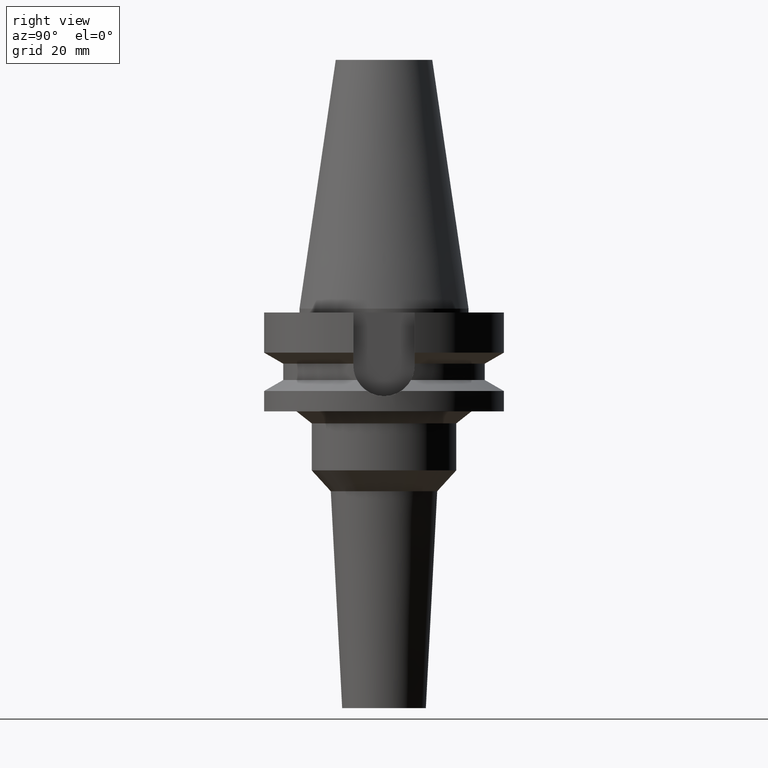
[diagram: clean part render]
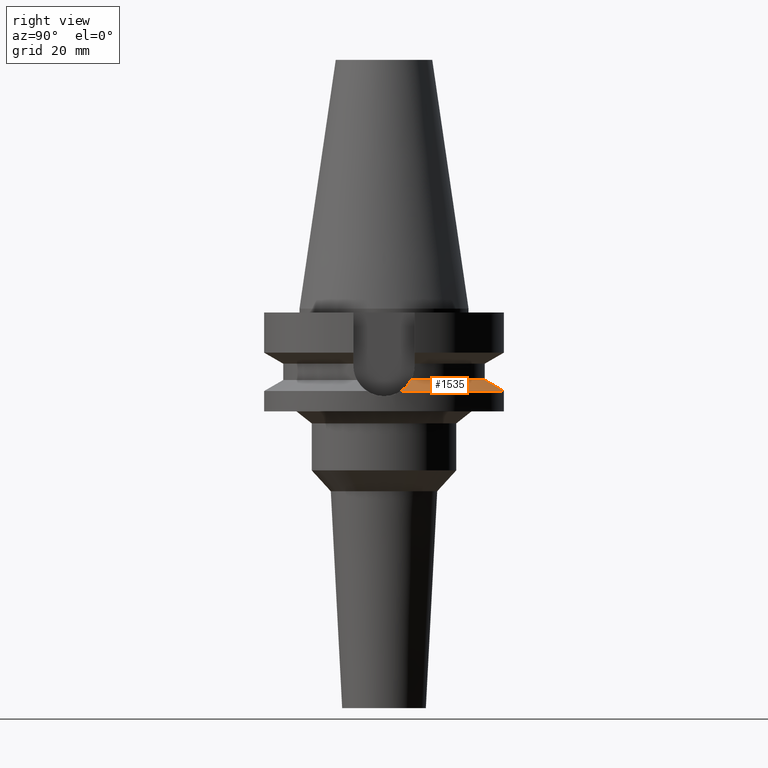
[diagram: same view with one face highlighted and labeled with its STEP entity id]
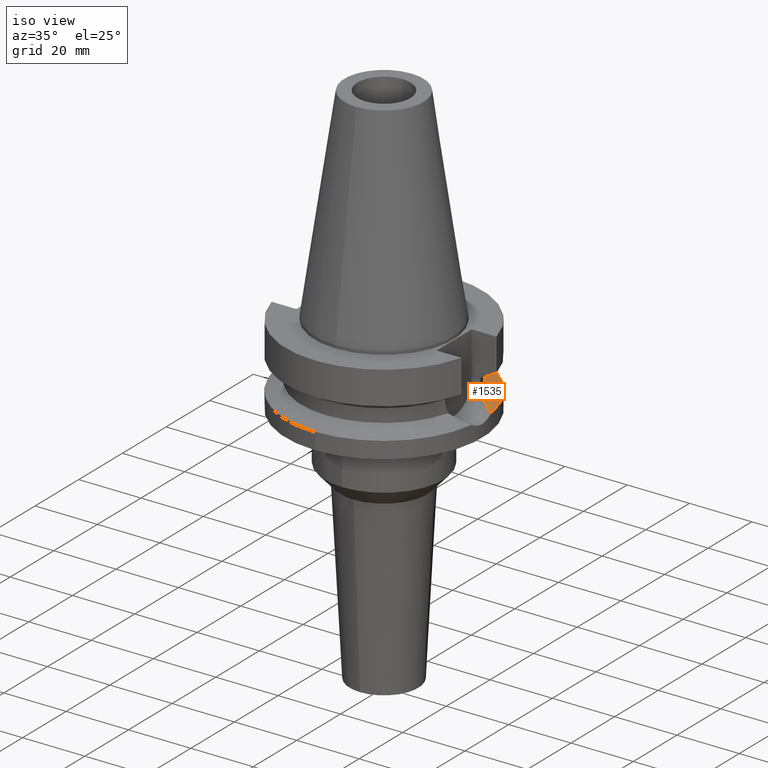
[diagram: same view with one face highlighted and labeled with its STEP entity id]
A machine part, right view. The second image highlights one B-rep face of the part: STEP entity #1535.
A second angle (iso view) of the same face is appended — the face is thin or edge-on in the first view.
In plain terms, the highlighted conical surface has half-angle 60 deg.
Its self-contained STEP definition (entity closure, byte-faithful):
#371=CARTESIAN_POINT('',(2.553175183775E1,7.097862220093E0,-1.874774300139E1));
#542=CARTESIAN_POINT('',(3.117899877609E1,4.485536235554E0,-2.163449434733E1));
#554=CARTESIAN_POINT('',(-2.553175183775E1,7.097862220093E0,-1.874774300139E1));
#555=CARTESIAN_POINT('',(-2.604301139702E1,6.957325728037E0,-1.901040128478E1));
#556=CARTESIAN_POINT('',(-2.700919654423E1,6.654600905991E0,-1.950590852273E1));
#557=CARTESIAN_POINT('',(-2.828273243056E1,6.156114099449E0,-2.015743109837E1));
#558=CARTESIAN_POINT('',(-2.939896234899E1,5.622905978368E0,-2.072740778783E1));
#559=CARTESIAN_POINT('',(-3.036659115201E1,5.065326816520E0,-2.122078619173E1));
#560=CARTESIAN_POINT('',(-3.092322003118E1,4.679587549588E0,-2.150427893306E1));
#561=CARTESIAN_POINT('',(-3.117899877609E1,4.485536235554E0,-2.163449434733E1));
#566=CARTESIAN_POINT('',(0.E0,0.E0,-2.163449434733E1));
#567=DIRECTION('',(0.E0,0.E0,-1.E0));
#568=DIRECTION('',(-9.898094849553E-1,1.423979757319E-1,0.E0));
#569=AXIS2_PLACEMENT_3D('',#566,#567,#568);
#574=CARTESIAN_POINT('',(0.E0,0.E0,-2.163449434733E1));
#575=DIRECTION('',(0.E0,0.E0,-1.E0));
#576=DIRECTION('',(0.E0,1.E0,0.E0));
#577=AXIS2_PLACEMENT_3D('',#574,#575,#576);
#582=CARTESIAN_POINT('',(3.117899877609E1,4.485536235554E0,-2.163449434733E1));
#583=CARTESIAN_POINT('',(3.081722901082E1,4.759999613475E0,-2.145031954472E1));
#584=CARTESIAN_POINT('',(3.002753233616E1,5.292865217356E0,-2.104810043751E1));
#585=CARTESIAN_POINT('',(2.847473858644E1,6.083456793467E0,-2.025567098309E1));
#586=CARTESIAN_POINT('',(2.705363490717E1,6.640540109254E0,-1.952871165683E1));
#587=CARTESIAN_POINT('',(2.604016657273E1,6.958107721486E0,-1.900893976362E1));
#588=CARTESIAN_POINT('',(2.553175183775E1,7.097862220093E0,-1.874774300139E1));
#593=CARTESIAN_POINT('',(0.E0,0.E0,-1.874774300139E1));
#594=DIRECTION('',(0.E0,0.E0,1.E0));
#595=DIRECTION('',(9.634623335001E-1,2.678438573620E-1,0.E0));
#596=AXIS2_PLACEMENT_3D('',#593,#594,#595);
#601=CARTESIAN_POINT('',(0.E0,0.E0,-1.874774300139E1));
#602=DIRECTION('',(0.E0,0.E0,1.E0));
#603=DIRECTION('',(0.E0,1.E0,0.E0));
#604=AXIS2_PLACEMENT_3D('',#601,#602,#603);
#1044=VERTEX_POINT('',#542);
#1046=CARTESIAN_POINT('',(0.E0,3.15E1,-2.163449434733E1));
#1047=VERTEX_POINT('',#1046);
#1060=VERTEX_POINT('',#371);
#1065=VERTEX_POINT('',#554);
#1066=VERTEX_POINT('',#561);
#1067=CARTESIAN_POINT('',(0.E0,2.65E1,-1.874774300139E1));
#1068=VERTEX_POINT('',#1067);
#1521=CARTESIAN_POINT('',(0.E0,0.E0,-2.019111867436E1));
#1522=DIRECTION('',(0.E0,0.E0,-1.E0));
#1523=DIRECTION('',(0.E0,-1.E0,0.E0));
#1524=AXIS2_PLACEMENT_3D('',#1521,#1522,#1523);
#1525=CONICAL_SURFACE('',#1524,2.9E1,6.E1);
#1526=ORIENTED_EDGE('',*,*,#1453,.T.);
#1528=ORIENTED_EDGE('',*,*,#1527,.T.);
#1529=ORIENTED_EDGE('',*,*,#1509,.T.);
#1530=ORIENTED_EDGE('',*,*,#1497,.T.);
#1531=ORIENTED_EDGE('',*,*,#1385,.T.);
#1532=ORIENTED_EDGE('',*,*,#1383,.T.);
#1533=EDGE_LOOP('',(#1526,#1528,#1529,#1530,#1531,#1532));
#1534=FACE_OUTER_BOUND('',#1533,.F.);
#562=B_SPLINE_CURVE_WITH_KNOTS('',3,(#554,#555,#556,#557,#558,#559,#560,#561),
.UNSPECIFIED.,.F.,.F.,(4,1,1,1,1,4),(0.E0,2.E-1,4.E-1,6.E-1,8.E-1,1.E0),
.UNSPECIFIED.);
#570=CIRCLE('',#569,3.15E1);
#578=CIRCLE('',#577,3.15E1);
#589=B_SPLINE_CURVE_WITH_KNOTS('',3,(#582,#583,#584,#585,#586,#587,#588),
.UNSPECIFIED.,.F.,.F.,(4,1,1,1,4),(0.E0,2.5E-1,5.E-1,7.5E-1,1.E0),
.UNSPECIFIED.);
#597=CIRCLE('',#596,2.65E1);
#605=CIRCLE('',#604,2.65E1);
#1383=EDGE_CURVE('',#1068,#1065,#605,.T.);
#1385=EDGE_CURVE('',#1060,#1068,#597,.T.);
#1453=EDGE_CURVE('',#1065,#1066,#562,.T.);
#1497=EDGE_CURVE('',#1044,#1060,#589,.T.);
#1509=EDGE_CURVE('',#1047,#1044,#578,.T.);
#1527=EDGE_CURVE('',#1066,#1047,#570,.T.);
#1535=ADVANCED_FACE('',(#1534),#1525,.T.);